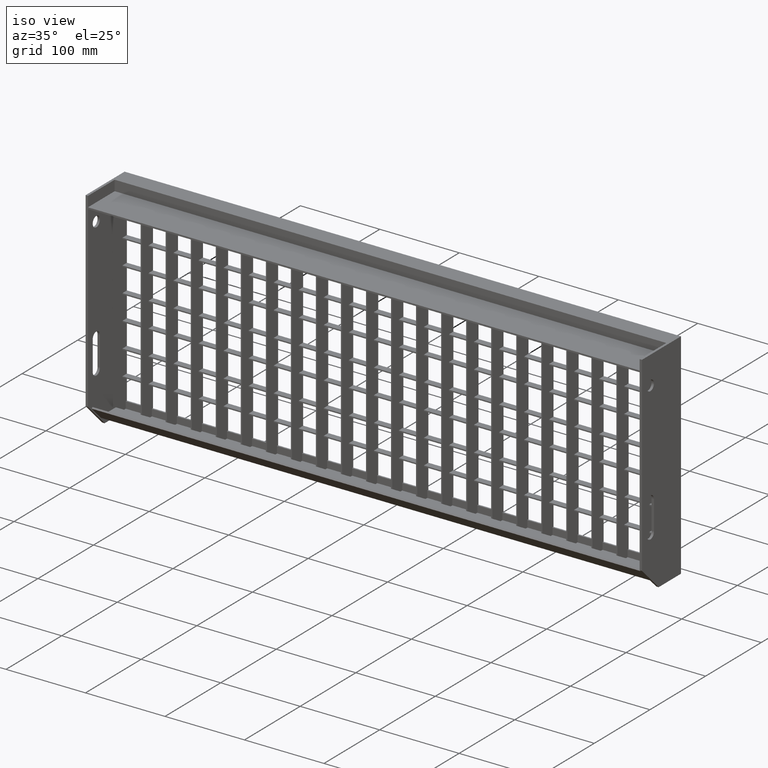
[diagram: clean part render]
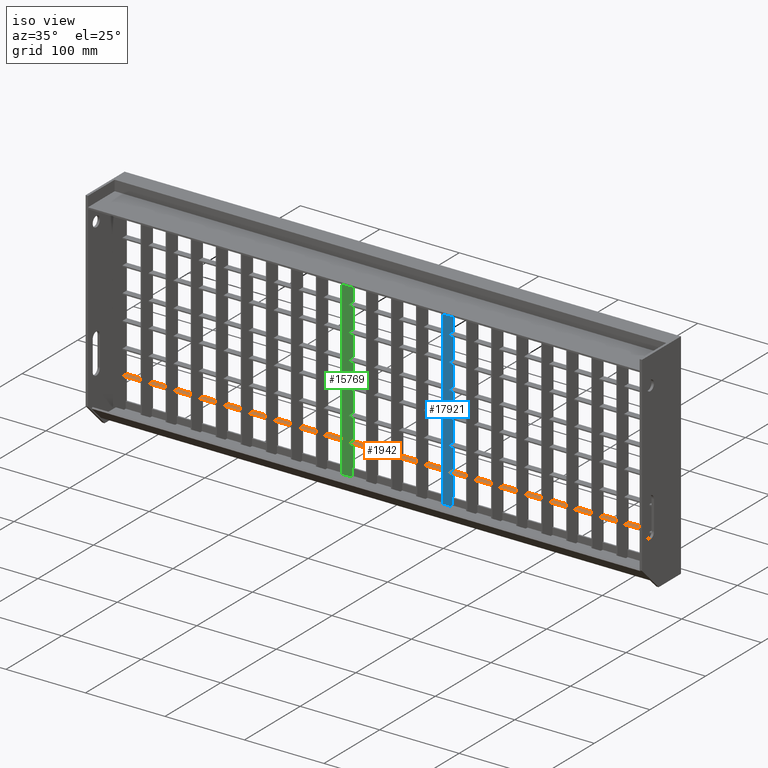
[diagram: same view with three faces highlighted in distinct colors, each labeled with its STEP entity id]
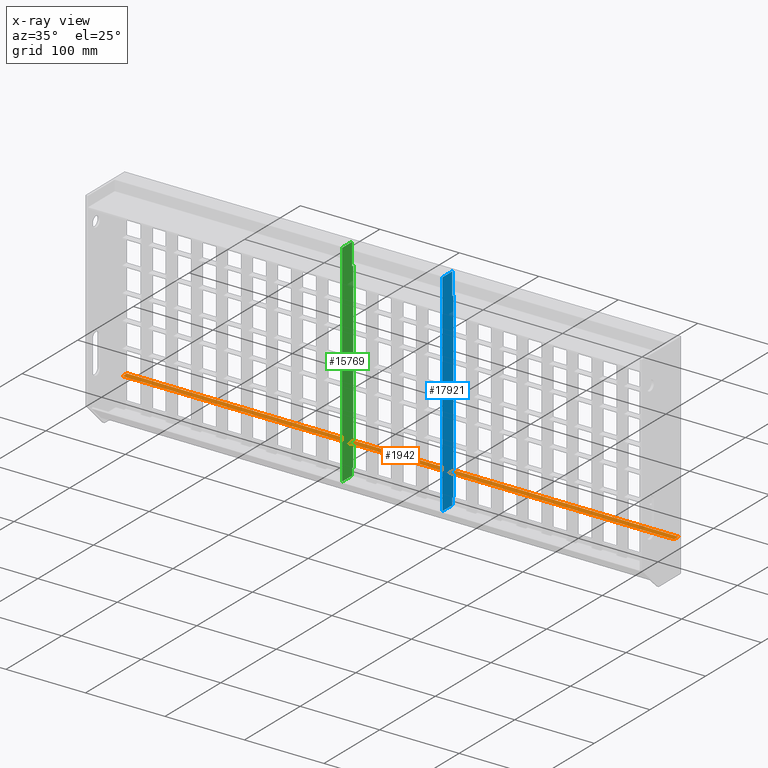
[diagram: x-ray of the same camera — body ghosted, the three highlighted faces saturated]
A machine part, iso view with three faces highlighted in distinct colors.
The next image is the same camera in x-ray (body ghosted, the three faces saturated) — at least one of them is partly hidden behind the body in this view.
Their STEP definitions:

[orange] entity #1942 — the highlighted planar face has unit normal (0, 0, -1).
#684 = CARTESIAN_POINT ( 'NONE',  ( -347.0000000000000000, 62.00000000000000700, -228.7500000000000000 ) ) ;
#1669 = LINE ( 'NONE', #2007, #20131 ) ;
#1925 = DIRECTION ( 'NONE',  ( 0.0000000000000000000, 1.000000000000000000, 0.0000000000000000000 ) ) ;
#1942 = ADVANCED_FACE ( 'NONE', ( #16522 ), #16828, .F. ) ;
#2007 = CARTESIAN_POINT ( 'NONE',  ( 347.0000000000000000, 62.00000000000000700, -228.7500000000000000 ) ) ;
#2995 = EDGE_CURVE ( 'NONE', #6006, #14506, #7883, .T. ) ;
#3252 = CARTESIAN_POINT ( 'NONE',  ( 355.1394102980498200, 70.00000000000000000, -228.7500000000000000 ) ) ;
#4051 = VERTEX_POINT ( 'NONE', #11195 ) ;
#5288 = DIRECTION ( 'NONE',  ( -1.000000000000000000, -0.0000000000000000000, -0.0000000000000000000 ) ) ;
#5862 = VECTOR ( 'NONE', #20735, 1000.000000000000000 ) ;
#6006 = VERTEX_POINT ( 'NONE', #8571 ) ;
#6407 = VECTOR ( 'NONE', #5288, 1000.000000000000000 ) ;
#6764 = DIRECTION ( 'NONE',  ( 0.0000000000000000000, 0.0000000000000000000, -1.000000000000000000 ) ) ;
#7883 = LINE ( 'NONE', #3252, #6407 ) ;
#8463 = EDGE_CURVE ( 'NONE', #19380, #4051, #22091, .T. ) ;
#8571 = CARTESIAN_POINT ( 'NONE',  ( 347.0000000000000000, 70.00000000000000000, -228.7500000000000000 ) ) ;
#8818 = CARTESIAN_POINT ( 'NONE',  ( 355.1394102980498200, 62.00000000000000700, -228.7500000000000000 ) ) ;
#10293 = LINE ( 'NONE', #684, #24912 ) ;
#10697 = EDGE_LOOP ( 'NONE', ( #22172, #14559, #21406, #21542 ) ) ;
#11028 = DIRECTION ( 'NONE',  ( 0.0000000000000000000, 1.000000000000000000, 0.0000000000000000000 ) ) ;
#11195 = CARTESIAN_POINT ( 'NONE',  ( -347.0000000000000000, 62.00000000000000700, -228.7500000000000000 ) ) ;
#12573 = CARTESIAN_POINT ( 'NONE',  ( 355.1394102980498200, 62.00000000000000700, -228.7500000000000000 ) ) ;
#14506 = VERTEX_POINT ( 'NONE', #19898 ) ;
#14559 = ORIENTED_EDGE ( 'NONE', *, *, #14587, .T. ) ;
#14587 = EDGE_CURVE ( 'NONE', #19380, #6006, #1669, .T. ) ;
#16522 = FACE_OUTER_BOUND ( 'NONE', #10697, .T. ) ;
#16828 = PLANE ( 'NONE',  #20919 ) ;
#18485 = CARTESIAN_POINT ( 'NONE',  ( 347.0000000000000000, 62.00000000000000700, -228.7500000000000000 ) ) ;
#19380 = VERTEX_POINT ( 'NONE', #18485 ) ;
#19538 = EDGE_CURVE ( 'NONE', #4051, #14506, #10293, .T. ) ;
#19898 = CARTESIAN_POINT ( 'NONE',  ( -347.0000000000000000, 70.00000000000000000, -228.7500000000000000 ) ) ;
#20131 = VECTOR ( 'NONE', #1925, 1000.000000000000000 ) ;
#20735 = DIRECTION ( 'NONE',  ( -1.000000000000000000, -0.0000000000000000000, -0.0000000000000000000 ) ) ;
#20799 = DIRECTION ( 'NONE',  ( -1.000000000000000000, 0.0000000000000000000, -0.0000000000000000000 ) ) ;
#20919 = AXIS2_PLACEMENT_3D ( 'NONE', #8818, #6764, #20799 ) ;
#21406 = ORIENTED_EDGE ( 'NONE', *, *, #2995, .T. ) ;
#21542 = ORIENTED_EDGE ( 'NONE', *, *, #19538, .F. ) ;
#22091 = LINE ( 'NONE', #12573, #5862 ) ;
#22172 = ORIENTED_EDGE ( 'NONE', *, *, #8463, .F. ) ;
#24912 = VECTOR ( 'NONE', #11028, 1000.000000000000000 ) ;

[blue] entity #17921 — the highlighted planar face has unit normal (-1, 0, 0).
#608 = ORIENTED_EDGE ( 'NONE', *, *, #22924, .T. ) ;
#648 = EDGE_CURVE ( 'NONE', #6647, #6030, #6707, .T. ) ;
#1117 = ORIENTED_EDGE ( 'NONE', *, *, #22917, .T. ) ;
#1126 = EDGE_CURVE ( 'NONE', #12393, #11000, #21632, .T. ) ;
#1312 = CARTESIAN_POINT ( 'NONE',  ( 63.75000000000000000, 50.00000000000000000, -1.999999999999993600 ) ) ;
#1842 = PLANE ( 'NONE',  #9635 ) ;
#2321 = CARTESIAN_POINT ( 'NONE',  ( 63.75000000000000000, 50.00000000000000000, -259.5000000000000000 ) ) ;
#2750 = ORIENTED_EDGE ( 'NONE', *, *, #17338, .T. ) ;
#3035 = EDGE_CURVE ( 'NONE', #4794, #3324, #16622, .T. ) ;
#3324 = VERTEX_POINT ( 'NONE', #2321 ) ;
#3341 = VERTEX_POINT ( 'NONE', #16488 ) ;
#4601 = VECTOR ( 'NONE', #23078, 1000.000000000000000 ) ;
#4621 = CARTESIAN_POINT ( 'NONE',  ( 63.75000000000000000, 50.00000000000000000, -1.999999999999993600 ) ) ;
#4794 = VERTEX_POINT ( 'NONE', #20142 ) ;
#4854 = CARTESIAN_POINT ( 'NONE',  ( 63.75000000000000000, 70.00000000000000000, -29.99999999999999300 ) ) ;
#5013 = LINE ( 'NONE', #10313, #26018 ) ;
#5138 = DIRECTION ( 'NONE',  ( 0.0000000000000000000, 0.0000000000000000000, -1.000000000000000000 ) ) ;
#5207 = CARTESIAN_POINT ( 'NONE',  ( 63.75000000000000000, 70.00000000000000000, -29.99999999999999300 ) ) ;
#5498 = DIRECTION ( 'NONE',  ( 0.0000000000000000000, 0.0000000000000000000, 1.000000000000000000 ) ) ;
#5602 = ORIENTED_EDGE ( 'NONE', *, *, #6483, .T. ) ;
#5650 = CARTESIAN_POINT ( 'NONE',  ( 63.75000000000000000, 50.00000000000000000, -1.999999999999993600 ) ) ;
#6030 = VERTEX_POINT ( 'NONE', #4621 ) ;
#6046 = DIRECTION ( 'NONE',  ( 0.0000000000000000000, 1.000000000000000000, 0.0000000000000000000 ) ) ;
#6382 = DIRECTION ( 'NONE',  ( 0.0000000000000000000, 1.632680918566405200E-015, 1.000000000000000000 ) ) ;
#6483 = EDGE_CURVE ( 'NONE', #22121, #13330, #20868, .T. ) ;
#6647 = VERTEX_POINT ( 'NONE', #6979 ) ;
#6707 = LINE ( 'NONE', #15158, #14992 ) ;
#6979 = CARTESIAN_POINT ( 'NONE',  ( 63.75000000000000000, 68.00000000000000000, -1.999999999999991300 ) ) ;
#7555 = EDGE_CURVE ( 'NONE', #6030, #4794, #17699, .T. ) ;
#7814 = DIRECTION ( 'NONE',  ( -1.000000000000000000, 0.0000000000000000000, 0.0000000000000000000 ) ) ;
#8019 = EDGE_CURVE ( 'NONE', #22121, #3324, #25297, .T. ) ;
#8606 = DIRECTION ( 'NONE',  ( 0.0000000000000000000, 1.000000000000000000, 0.0000000000000000000 ) ) ;
#9118 = CARTESIAN_POINT ( 'NONE',  ( 63.75000000000000000, 50.00000000000012800, 0.0000000000000000000 ) ) ;
#9635 = AXIS2_PLACEMENT_3D ( 'NONE', #20002, #7814, #5498 ) ;
#10220 = VECTOR ( 'NONE', #8606, 1000.000000000000000 ) ;
#10313 = CARTESIAN_POINT ( 'NONE',  ( 63.75000000000000000, 68.00000000000000000, -29.99999999999999300 ) ) ;
#10501 = FACE_OUTER_BOUND ( 'NONE', #11335, .T. ) ;
#10586 = CARTESIAN_POINT ( 'NONE',  ( 63.75000000000000000, 67.99999999999997200, -268.0000000000000000 ) ) ;
#10741 = CARTESIAN_POINT ( 'NONE',  ( 63.75000000000000000, 67.99999999999998600, -259.5000000000000000 ) ) ;
#11000 = VERTEX_POINT ( 'NONE', #4854 ) ;
#11335 = EDGE_LOOP ( 'NONE', ( #608, #20590, #26396, #16751, #19651, #15853, #5602, #1117, #2750, #19310 ) ) ;
#12286 = CARTESIAN_POINT ( 'NONE',  ( 63.75000000000000000, 70.00000000000000000, -259.5000000000000000 ) ) ;
#12393 = VERTEX_POINT ( 'NONE', #12286 ) ;
#13330 = VERTEX_POINT ( 'NONE', #16539 ) ;
#13599 = DIRECTION ( 'NONE',  ( -0.0000000000000000000, -0.0000000000000000000, 1.000000000000000000 ) ) ;
#14992 = VECTOR ( 'NONE', #25203, 1000.000000000000000 ) ;
#15158 = CARTESIAN_POINT ( 'NONE',  ( 63.75000000000000000, 68.00000000000000000, -1.999999999999991300 ) ) ;
#15853 = ORIENTED_EDGE ( 'NONE', *, *, #8019, .F. ) ;
#16342 = CARTESIAN_POINT ( 'NONE',  ( 63.75000000000000000, 70.00000000000000000, -29.99999999999999300 ) ) ;
#16488 = CARTESIAN_POINT ( 'NONE',  ( 63.75000000000000000, 68.00000000000000000, -29.99999999999999300 ) ) ;
#16539 = CARTESIAN_POINT ( 'NONE',  ( 63.75000000000000000, 67.99999999999997200, -268.0000000000000000 ) ) ;
#16619 = DIRECTION ( 'NONE',  ( 0.0000000000000000000, 0.0000000000000000000, 1.000000000000000000 ) ) ;
#16622 = LINE ( 'NONE', #5650, #19142 ) ;
#16751 = ORIENTED_EDGE ( 'NONE', *, *, #7555, .T. ) ;
#17058 = VECTOR ( 'NONE', #6046, 1000.000000000000000 ) ;
#17125 = VECTOR ( 'NONE', #24691, 1000.000000000000000 ) ;
#17338 = EDGE_CURVE ( 'NONE', #24376, #12393, #24223, .T. ) ;
#17699 = LINE ( 'NONE', #1312, #22477 ) ;
#17755 = LINE ( 'NONE', #10586, #22536 ) ;
#17921 = ADVANCED_FACE ( 'NONE', ( #10501 ), #1842, .F. ) ;
#19142 = VECTOR ( 'NONE', #25910, 1000.000000000000000 ) ;
#19310 = ORIENTED_EDGE ( 'NONE', *, *, #1126, .T. ) ;
#19651 = ORIENTED_EDGE ( 'NONE', *, *, #3035, .T. ) ;
#20002 = CARTESIAN_POINT ( 'NONE',  ( 63.75000000000000000, 0.0000000000000000000, 0.0000000000000000000 ) ) ;
#20142 = CARTESIAN_POINT ( 'NONE',  ( 63.75000000000000000, 50.00000000000000000, -15.00000000000000000 ) ) ;
#20590 = ORIENTED_EDGE ( 'NONE', *, *, #22946, .T. ) ;
#20775 = CARTESIAN_POINT ( 'NONE',  ( 63.75000000000000000, 67.99999999999998600, -259.5000000000000000 ) ) ;
#20868 = LINE ( 'NONE', #24370, #17058 ) ;
#21632 = LINE ( 'NONE', #5207, #21979 ) ;
#21786 = CARTESIAN_POINT ( 'NONE',  ( 63.75000000000000000, 50.00000000000000000, -268.0000000000000000 ) ) ;
#21979 = VECTOR ( 'NONE', #13599, 1000.000000000000000 ) ;
#22121 = VERTEX_POINT ( 'NONE', #21786 ) ;
#22477 = VECTOR ( 'NONE', #5138, 1000.000000000000000 ) ;
#22536 = VECTOR ( 'NONE', #6382, 1000.000000000000000 ) ;
#22917 = EDGE_CURVE ( 'NONE', #13330, #24376, #17755, .T. ) ;
#22924 = EDGE_CURVE ( 'NONE', #11000, #3341, #24471, .T. ) ;
#22946 = EDGE_CURVE ( 'NONE', #3341, #6647, #5013, .T. ) ;
#23078 = DIRECTION ( 'NONE',  ( 0.0000000000000000000, 0.0000000000000000000, 1.000000000000000000 ) ) ;
#24223 = LINE ( 'NONE', #10741, #10220 ) ;
#24370 = CARTESIAN_POINT ( 'NONE',  ( 63.75000000000000000, 50.00000000000000000, -268.0000000000000000 ) ) ;
#24376 = VERTEX_POINT ( 'NONE', #20775 ) ;
#24471 = LINE ( 'NONE', #16342, #17125 ) ;
#24691 = DIRECTION ( 'NONE',  ( 0.0000000000000000000, -1.000000000000000000, 0.0000000000000000000 ) ) ;
#25203 = DIRECTION ( 'NONE',  ( 0.0000000000000000000, -1.000000000000000000, -1.204669080539449300E-016 ) ) ;
#25297 = LINE ( 'NONE', #9118, #4601 ) ;
#25910 = DIRECTION ( 'NONE',  ( 0.0000000000000000000, 0.0000000000000000000, -1.000000000000000000 ) ) ;
#26018 = VECTOR ( 'NONE', #16619, 1000.000000000000000 ) ;
#26396 = ORIENTED_EDGE ( 'NONE', *, *, #648, .T. ) ;

[green] entity #15769 — the highlighted planar face has unit normal (-1, 0, 0).
#245 = LINE ( 'NONE', #10398, #14275 ) ;
#698 = EDGE_CURVE ( 'NONE', #3589, #18939, #4477, .T. ) ;
#809 = ORIENTED_EDGE ( 'NONE', *, *, #12034, .F. ) ;
#1047 = ORIENTED_EDGE ( 'NONE', *, *, #16347, .T. ) ;
#1087 = ORIENTED_EDGE ( 'NONE', *, *, #14291, .T. ) ;
#1297 = EDGE_CURVE ( 'NONE', #7982, #12683, #13708, .T. ) ;
#1365 = DIRECTION ( 'NONE',  ( 0.0000000000000000000, 0.0000000000000000000, 1.000000000000000000 ) ) ;
#1366 = VECTOR ( 'NONE', #25289, 1000.000000000000000 ) ;
#1372 = VERTEX_POINT ( 'NONE', #16511 ) ;
#1640 = EDGE_CURVE ( 'NONE', #18939, #12583, #7291, .T. ) ;
#1864 = VECTOR ( 'NONE', #7579, 1000.000000000000000 ) ;
#1919 = VECTOR ( 'NONE', #5364, 1000.000000000000000 ) ;
#2183 = DIRECTION ( 'NONE',  ( -0.0000000000000000000, -0.0000000000000000000, 1.000000000000000000 ) ) ;
#2442 = CARTESIAN_POINT ( 'NONE',  ( -62.25000000000000000, 68.00000000000015600, -7.319048676309100700 ) ) ;
#3050 = DIRECTION ( 'NONE',  ( 0.0000000000000000000, 1.632680918566405200E-015, 1.000000000000000000 ) ) ;
#3155 = CARTESIAN_POINT ( 'NONE',  ( -62.25000000000000000, 67.99999999999997200, -268.0000000000000000 ) ) ;
#3247 = PLANE ( 'NONE',  #9657 ) ;
#3589 = VERTEX_POINT ( 'NONE', #9008 ) ;
#4271 = VERTEX_POINT ( 'NONE', #7596 ) ;
#4477 = LINE ( 'NONE', #23626, #1919 ) ;
#4548 = EDGE_CURVE ( 'NONE', #12683, #18808, #20680, .T. ) ;
#4680 = CARTESIAN_POINT ( 'NONE',  ( -62.25000000000000000, 50.00000000000000000, -259.5000000000000000 ) ) ;
#4828 = CARTESIAN_POINT ( 'NONE',  ( -62.25000000000000000, 50.00000000000000000, -268.0000000000000000 ) ) ;
#4972 = CARTESIAN_POINT ( 'NONE',  ( -62.25000000000000000, 68.00000000000000000, -29.99999999999999300 ) ) ;
#5010 = CARTESIAN_POINT ( 'NONE',  ( -62.25000000000000000, 70.00000000000000000, -29.99999999999999300 ) ) ;
#5128 = VECTOR ( 'NONE', #16651, 1000.000000000000000 ) ;
#5144 = CARTESIAN_POINT ( 'NONE',  ( -62.25000000000000000, 50.00000000000000000, -268.0000000000000000 ) ) ;
#5364 = DIRECTION ( 'NONE',  ( 0.0000000000000000000, 0.0000000000000000000, -1.000000000000000000 ) ) ;
#5488 = ORIENTED_EDGE ( 'NONE', *, *, #1297, .T. ) ;
#6042 = VECTOR ( 'NONE', #18016, 1000.000000000000000 ) ;
#6288 = EDGE_CURVE ( 'NONE', #18953, #15423, #12317, .T. ) ;
#6786 = LINE ( 'NONE', #6800, #1366 ) ;
#6800 = CARTESIAN_POINT ( 'NONE',  ( -62.25000000000000000, 67.99999999999998600, -259.5000000000000000 ) ) ;
#7107 = DIRECTION ( 'NONE',  ( 0.0000000000000000000, 0.0000000000000000000, 1.000000000000000000 ) ) ;
#7184 = DIRECTION ( 'NONE',  ( 0.0000000000000000000, 1.000000000000000000, 0.0000000000000000000 ) ) ;
#7215 = CARTESIAN_POINT ( 'NONE',  ( -62.25000000000000000, 68.00000000000000000, -1.999999999999991300 ) ) ;
#7291 = LINE ( 'NONE', #11440, #1864 ) ;
#7579 = DIRECTION ( 'NONE',  ( 0.0000000000000000000, 0.0000000000000000000, -1.000000000000000000 ) ) ;
#7596 = CARTESIAN_POINT ( 'NONE',  ( -62.25000000000000000, 67.99999999999997200, -268.0000000000000000 ) ) ;
#7619 = CARTESIAN_POINT ( 'NONE',  ( -62.25000000000000000, 70.00000000000000000, -29.99999999999999300 ) ) ;
#7982 = VERTEX_POINT ( 'NONE', #5010 ) ;
#9008 = CARTESIAN_POINT ( 'NONE',  ( -62.25000000000000000, 50.00000000000000000, -1.999999999999993600 ) ) ;
#9557 = VECTOR ( 'NONE', #15901, 1000.000000000000000 ) ;
#9657 = AXIS2_PLACEMENT_3D ( 'NONE', #13583, #11277, #1365 ) ;
#10398 = CARTESIAN_POINT ( 'NONE',  ( -62.25000000000000000, 70.00000000000000000, -29.99999999999999300 ) ) ;
#10483 = ORIENTED_EDGE ( 'NONE', *, *, #698, .T. ) ;
#10642 = LINE ( 'NONE', #5144, #19817 ) ;
#10724 = VECTOR ( 'NONE', #15218, 1000.000000000000000 ) ;
#11070 = DIRECTION ( 'NONE',  ( 0.0000000000000000000, -1.000000000000000000, -1.204669080539449300E-016 ) ) ;
#11277 = DIRECTION ( 'NONE',  ( -1.000000000000000000, 0.0000000000000000000, 0.0000000000000000000 ) ) ;
#11440 = CARTESIAN_POINT ( 'NONE',  ( -62.25000000000000000, 50.00000000000000000, -1.999999999999993600 ) ) ;
#11922 = CARTESIAN_POINT ( 'NONE',  ( -62.25000000000000000, 68.00000000000000000, -29.99999999999999300 ) ) ;
#11969 = ORIENTED_EDGE ( 'NONE', *, *, #1640, .T. ) ;
#11992 = CARTESIAN_POINT ( 'NONE',  ( -62.25000000000000000, 70.00000000000000000, -259.5000000000000000 ) ) ;
#12034 = EDGE_CURVE ( 'NONE', #26246, #12583, #20233, .T. ) ;
#12317 = LINE ( 'NONE', #21341, #23764 ) ;
#12583 = VERTEX_POINT ( 'NONE', #4680 ) ;
#12683 = VERTEX_POINT ( 'NONE', #16967 ) ;
#13583 = CARTESIAN_POINT ( 'NONE',  ( -62.25000000000000000, 0.0000000000000000000, 0.0000000000000000000 ) ) ;
#13592 = VERTEX_POINT ( 'NONE', #11992 ) ;
#13708 = LINE ( 'NONE', #7619, #9557 ) ;
#13864 = EDGE_CURVE ( 'NONE', #15423, #3589, #21418, .T. ) ;
#14233 = ORIENTED_EDGE ( 'NONE', *, *, #20644, .T. ) ;
#14275 = VECTOR ( 'NONE', #2183, 1000.000000000000000 ) ;
#14291 = EDGE_CURVE ( 'NONE', #26246, #4271, #10642, .T. ) ;
#15218 = DIRECTION ( 'NONE',  ( 0.0000000000000000000, 0.0000000000000000000, 1.000000000000000000 ) ) ;
#15423 = VERTEX_POINT ( 'NONE', #25881 ) ;
#15769 = ADVANCED_FACE ( 'NONE', ( #16908 ), #3247, .F. ) ;
#15901 = DIRECTION ( 'NONE',  ( 0.0000000000000000000, -1.000000000000000000, 0.0000000000000000000 ) ) ;
#16283 = VECTOR ( 'NONE', #3050, 1000.000000000000000 ) ;
#16347 = EDGE_CURVE ( 'NONE', #18808, #18953, #17865, .T. ) ;
#16511 = CARTESIAN_POINT ( 'NONE',  ( -62.25000000000000000, 67.99999999999998600, -259.5000000000000000 ) ) ;
#16651 = DIRECTION ( 'NONE',  ( 0.0000000000000000000, 0.0000000000000000000, 1.000000000000000000 ) ) ;
#16908 = FACE_OUTER_BOUND ( 'NONE', #21966, .T. ) ;
#16967 = CARTESIAN_POINT ( 'NONE',  ( -62.25000000000000000, 68.00000000000000000, -29.99999999999999300 ) ) ;
#17845 = LINE ( 'NONE', #3155, #16283 ) ;
#17865 = LINE ( 'NONE', #4972, #5128 ) ;
#18016 = DIRECTION ( 'NONE',  ( 0.0000000000000000000, 0.0000000000000000000, 1.000000000000000000 ) ) ;
#18808 = VERTEX_POINT ( 'NONE', #19724 ) ;
#18891 = VECTOR ( 'NONE', #11070, 1000.000000000000000 ) ;
#18939 = VERTEX_POINT ( 'NONE', #22822 ) ;
#18953 = VERTEX_POINT ( 'NONE', #2442 ) ;
#19133 = EDGE_CURVE ( 'NONE', #1372, #13592, #6786, .T. ) ;
#19724 = CARTESIAN_POINT ( 'NONE',  ( -62.25000000000000000, 68.00000000000000000, -12.68095132369090400 ) ) ;
#19817 = VECTOR ( 'NONE', #7184, 1000.000000000000000 ) ;
#20233 = LINE ( 'NONE', #23228, #10724 ) ;
#20644 = EDGE_CURVE ( 'NONE', #4271, #1372, #17845, .T. ) ;
#20680 = LINE ( 'NONE', #11922, #6042 ) ;
#21341 = CARTESIAN_POINT ( 'NONE',  ( -62.25000000000000000, 68.00000000000000000, -29.99999999999999300 ) ) ;
#21418 = LINE ( 'NONE', #7215, #18891 ) ;
#21771 = ORIENTED_EDGE ( 'NONE', *, *, #4548, .T. ) ;
#21966 = EDGE_LOOP ( 'NONE', ( #5488, #21771, #1047, #22219, #22832, #10483, #11969, #809, #1087, #14233, #24853, #23075 ) ) ;
#22219 = ORIENTED_EDGE ( 'NONE', *, *, #6288, .T. ) ;
#22822 = CARTESIAN_POINT ( 'NONE',  ( -62.25000000000000000, 50.00000000000000000, -15.00000000000000000 ) ) ;
#22832 = ORIENTED_EDGE ( 'NONE', *, *, #13864, .T. ) ;
#22913 = EDGE_CURVE ( 'NONE', #13592, #7982, #245, .T. ) ;
#23075 = ORIENTED_EDGE ( 'NONE', *, *, #22913, .T. ) ;
#23228 = CARTESIAN_POINT ( 'NONE',  ( -62.25000000000000000, 50.00000000000012800, 0.0000000000000000000 ) ) ;
#23626 = CARTESIAN_POINT ( 'NONE',  ( -62.25000000000000000, 50.00000000000000000, -1.999999999999993600 ) ) ;
#23764 = VECTOR ( 'NONE', #7107, 1000.000000000000000 ) ;
#24853 = ORIENTED_EDGE ( 'NONE', *, *, #19133, .T. ) ;
#25289 = DIRECTION ( 'NONE',  ( 0.0000000000000000000, 1.000000000000000000, 0.0000000000000000000 ) ) ;
#25881 = CARTESIAN_POINT ( 'NONE',  ( -62.25000000000000000, 68.00000000000000000, -1.999999999999991300 ) ) ;
#26246 = VERTEX_POINT ( 'NONE', #4828 ) ;